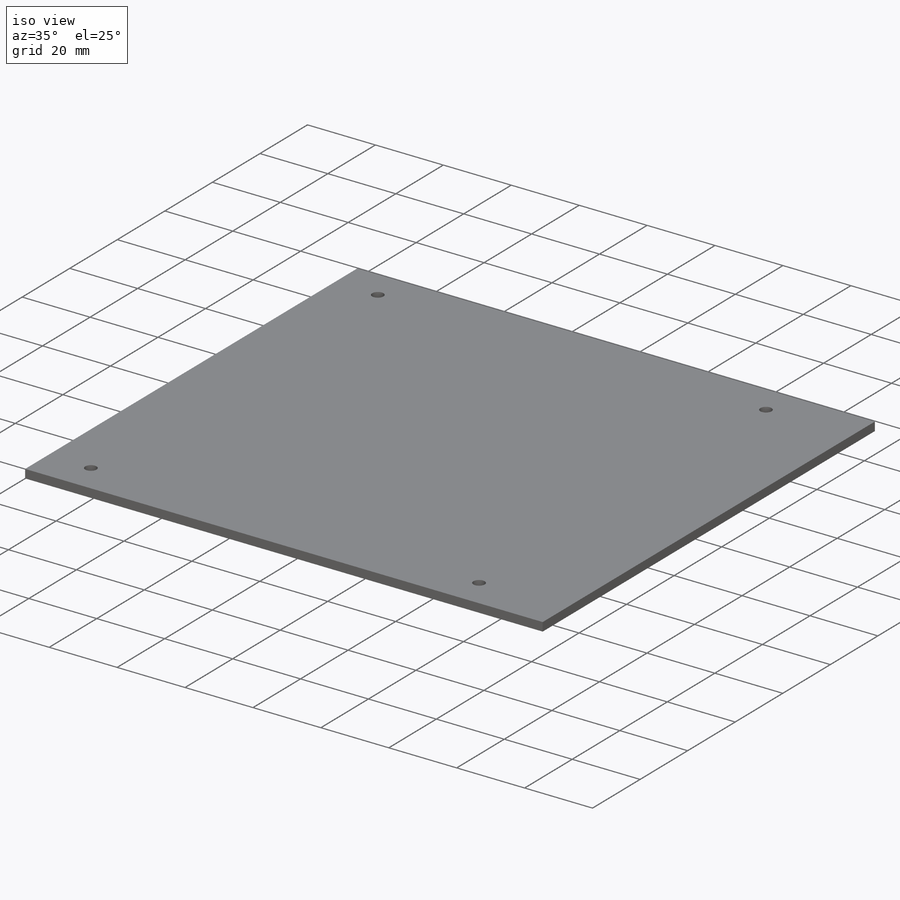
[diagram: iso view]
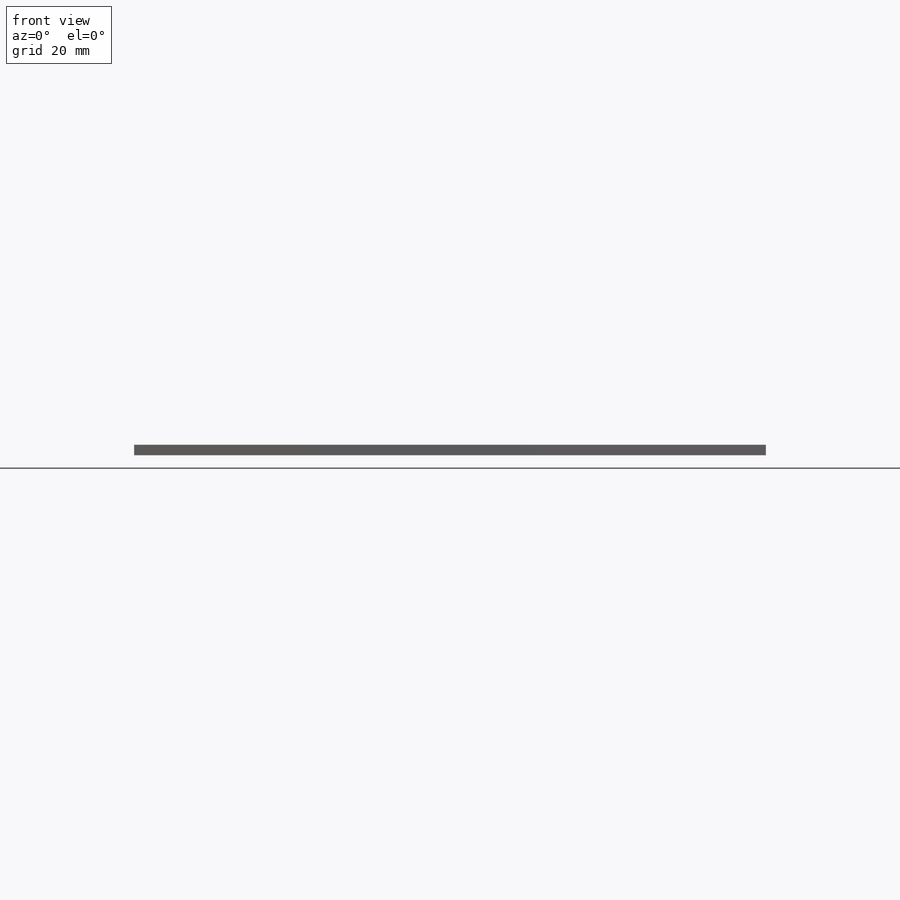
[diagram: front view]
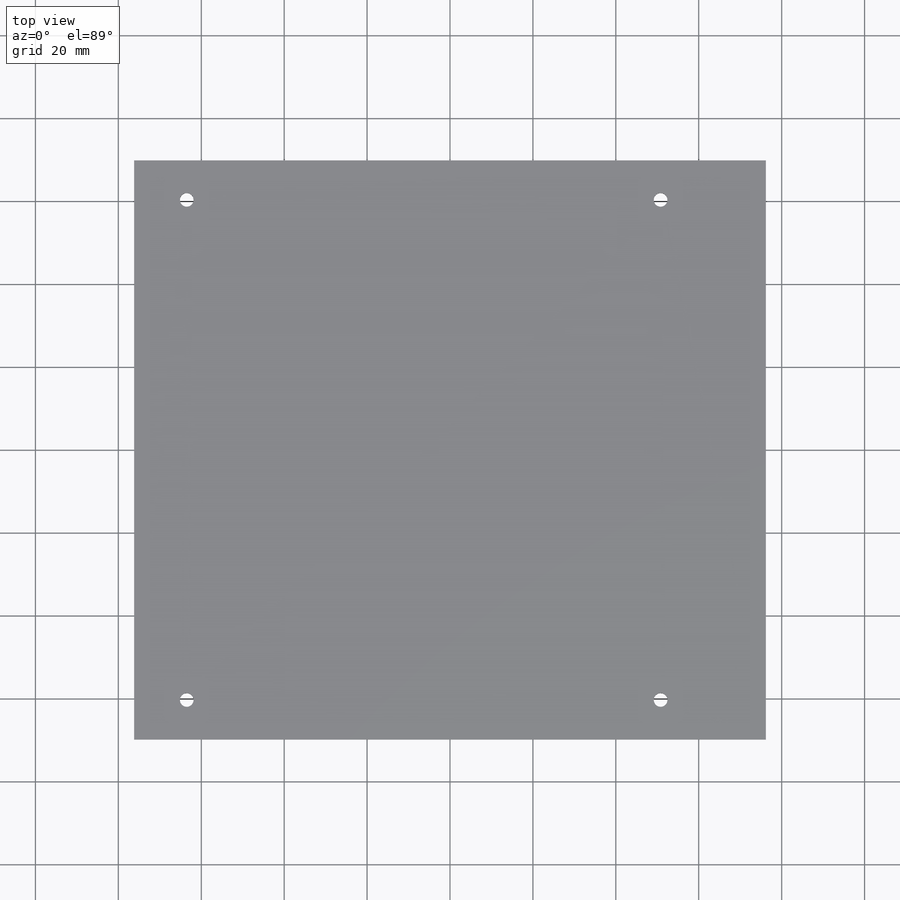
[diagram: top view]
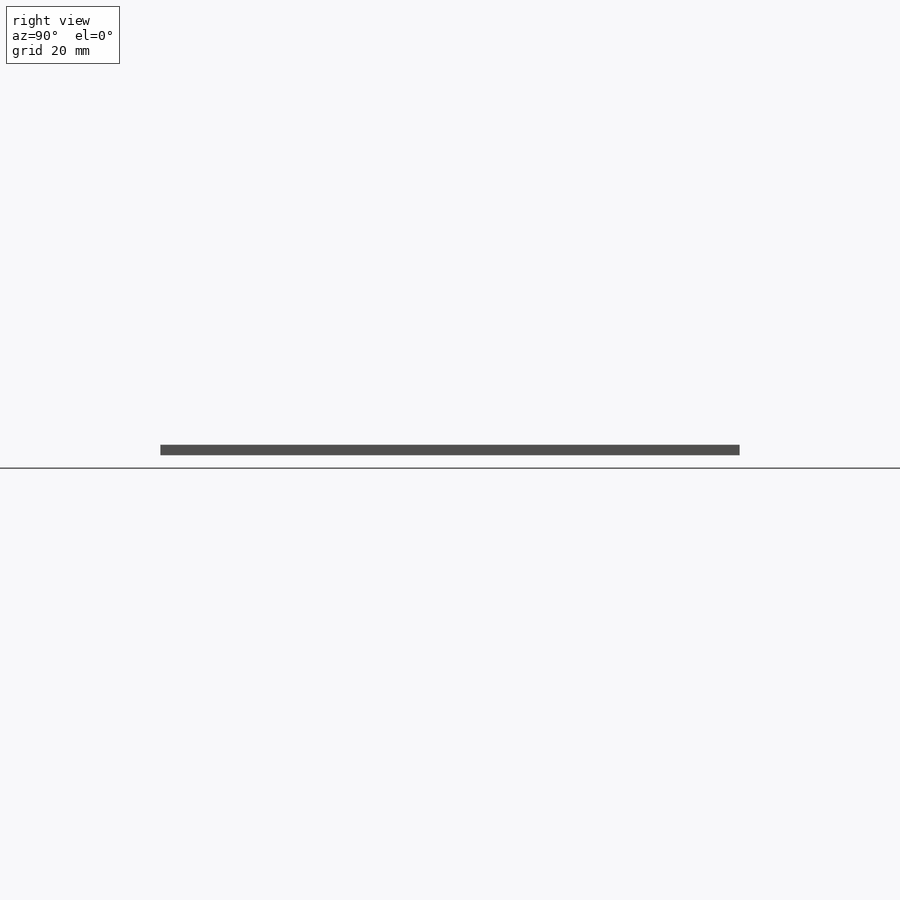
[diagram: right view]
SOLIDWORKS PART (.sldprt)
format: sldprt  version: not decoded by parser v0  size: 177,664 bytes
history: native  units: mm
features: thread x4, sketch x3, material x1, extrude x1, hole x1 (+11 scaffold rows collapsed)
feature tree (21):
  scaffold x11  (default folders/planes/origin — collapsed)
  material  "Material <not specified>"
  sketch  "Sketch1"  dims[D1=139.7mm D2=152.4mm]
  extrude  "Boss-Extrude1"  Depth=2.54mm
  hole  "M4x0.7 Tapped Hole1"  Diameter=3.3mm Depth=9.906mm
  sketch  "Sketch3"  dims[D1=120.65mm D2=63.5mm D3=50.8mm]
  sketch  "Sketch2"  dims[hole-wizard template sketch: 47 standard entries collapsed; hole parameters kept: c15.Tap Drill Depth=9.906mm c15.D3=~14.816244mm c15.Drill Angle=180.0deg]
  thread  "Hole Thread1"  Diameter=2.54mm  [1 undecoded]
  thread  "Hole Thread2"  Diameter=2.54mm  [1 undecoded]
  thread  "Hole Thread3"  Diameter=2.54mm  [1 undecoded]
  thread  "Hole Thread4"  Diameter=2.54mm  [1 undecoded]
decode coverage: 9 of 9 modeling features carry decoded parameters
note: ~ marks probable driven/reference dimensions
note: 4 parameter values undecoded
note: suppression state not decoded; provenance and decode notes live in map.json
